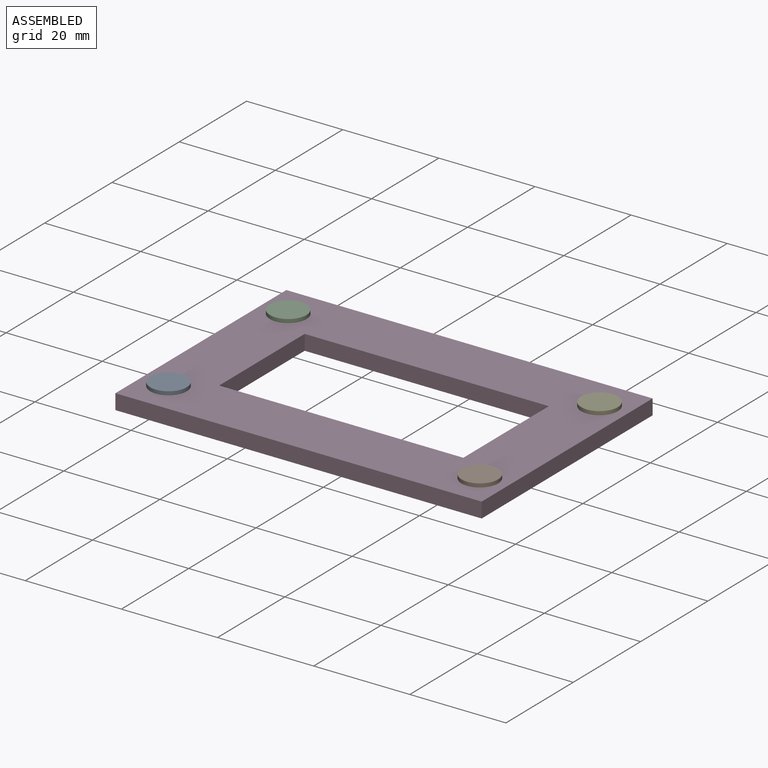
[diagram: assembled view]
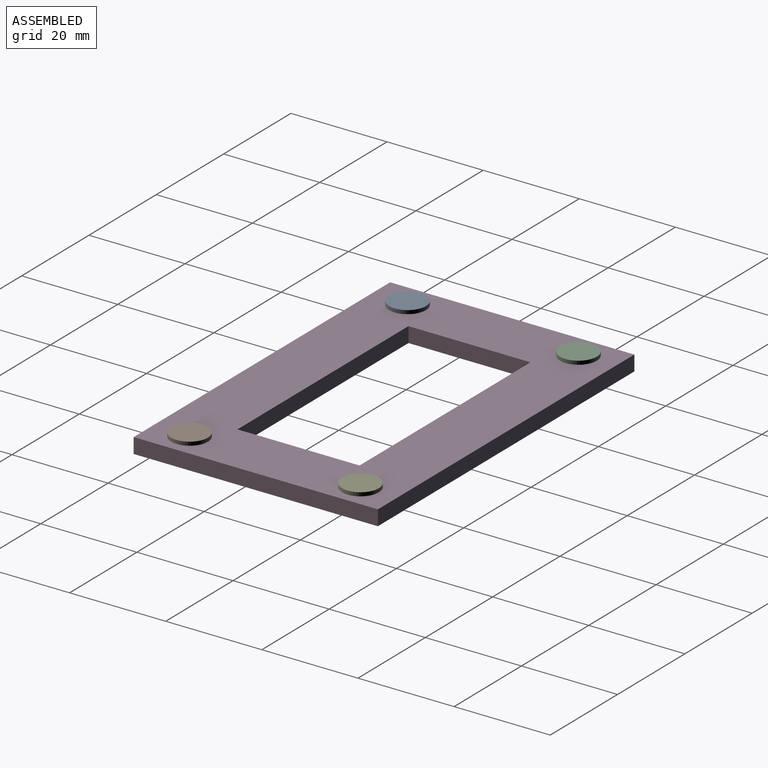
[diagram: assembled view, second angle]
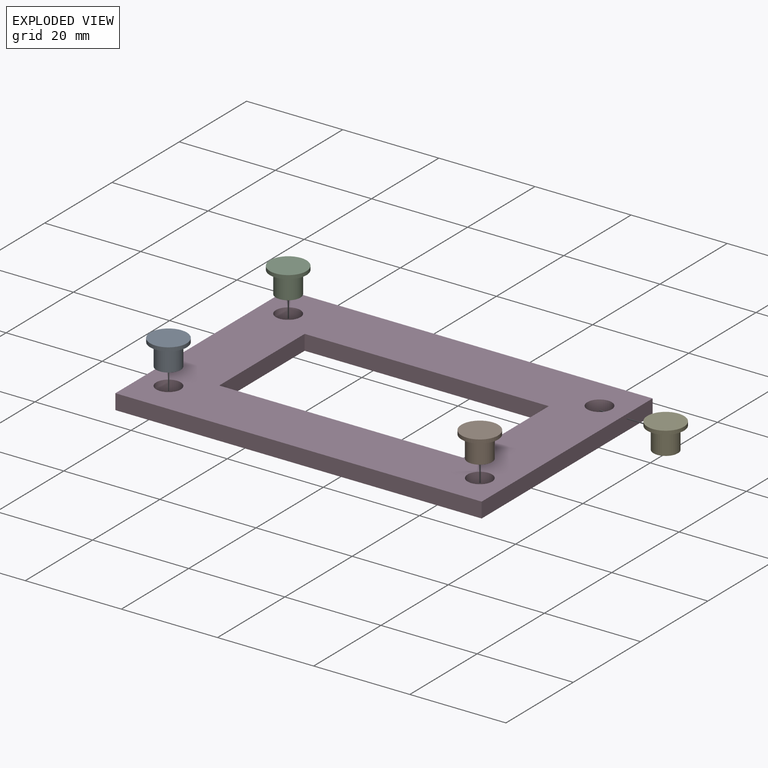
[diagram: exploded view]
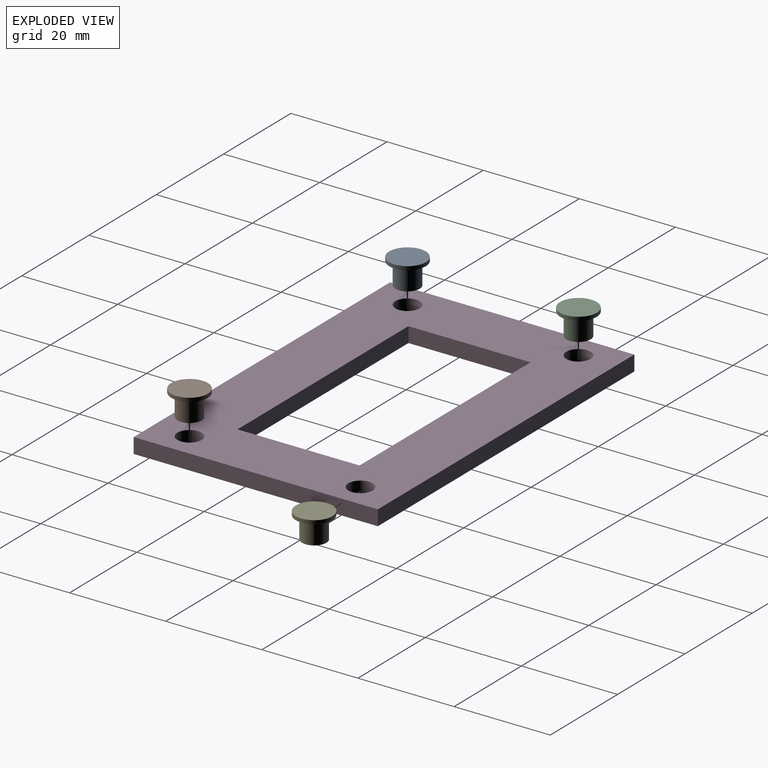
[diagram: exploded view, second angle]
ASSEMBLY  parts=5 mates=3
PART A: 5 faces, bbox 7.6x7.6x5.3 mm
  f0: cylinder r=3.81mm len=7.62mm, axis (0,0,-1), area 18.2mm2, adj f1,f2
  f1: plane 7.62x7.62mm, normal (0,0,1), area 45.6mm2, adj f0
  f2: plane 7.62x7.62mm, normal (0,0,-1), area 25.3mm2, adj f0,f3
  f3: cylinder r=2.54mm len=5.08mm, axis (0,0,1), area 73mm2, adj f2,f4
  f4: plane 5.08x5.08mm, normal (0,0,-1), area 20.3mm2, adj f3
PART B: same geometry as A
PART C: same geometry as A
PART D: 14 faces, bbox 76.2x50.8x3.2 mm
  f0: plane 76.2x50.8mm, normal (0,0,1), area 2499.6mm2, adj f2,f3,f4,f5,f6,f7,f8,f9
  f1: plane 76.2x50.8mm, normal (0,0,-1), area 2499.6mm2, adj f2,f3,f4,f5,f6,f7,f8,f9
  f2: plane 50.8x3.18mm, normal (1,0,0), area 161.3mm2, adj f0,f1,f3,f9
  f3: plane 76.2x3.18mm, normal (0,1,0), area 241.9mm2, adj f0,f1,f2,f4
  f4: plane 50.8x3.18mm, normal (-1,0,0), area 161.3mm2, adj f0,f1,f3,f9
  f5: plane 25.4x3.18mm, normal (1,0,0), area 80.6mm2, adj f0,f1,f6,f8
  f6: plane 50.8x3.18mm, normal (0,-1,0), area 161.3mm2, adj f0,f1,f5,f7
  f7: plane 25.4x3.18mm, normal (-1,0,0), area 80.6mm2, adj f0,f1,f6,f8
  f8: plane 50.8x3.18mm, normal (0,1,0), area 161.3mm2, adj f0,f1,f5,f7
  f9: plane 76.2x3.18mm, normal (0,-1,0), area 241.9mm2, adj f0,f1,f2,f4
  f10: cylinder r=2.54mm len=5.08mm, axis (0,0,1), area 50.7mm2, adj f0,f1
  f11: cylinder r=2.54mm len=5.08mm, axis (0,0,1), area 50.7mm2, adj f0,f1
  f12: cylinder r=2.54mm len=5.08mm, axis (0,0,1), area 50.7mm2, adj f0,f1
  f13: cylinder r=2.54mm len=5.08mm, axis (0,0,1), area 50.7mm2, adj f0,f1
PART E: same geometry as A
PLACE A t=(-70.11,-49.9,8.07)mm
PLACE B t=(-5.34,-49.9,8.07)mm
PLACE C t=(-70.11,-14.34,8.07)mm
PLACE D t=(-5.34,-14.34,8.07)mm
PLACE E t=(-5.34,-14.34,8.07)mm
MATE fastened C.f0 <-> D.f13  axis (0,0,-1) through (-37.73,3.44,11.24)mm
MATE fastened B.f0 <-> D.f12  axis (0,0,-1) through (27.04,-32.12,11.24)mm
MATE fastened A.f0 <-> D.f11  axis (0,0,-1) through (-37.73,-32.12,11.24)mm
